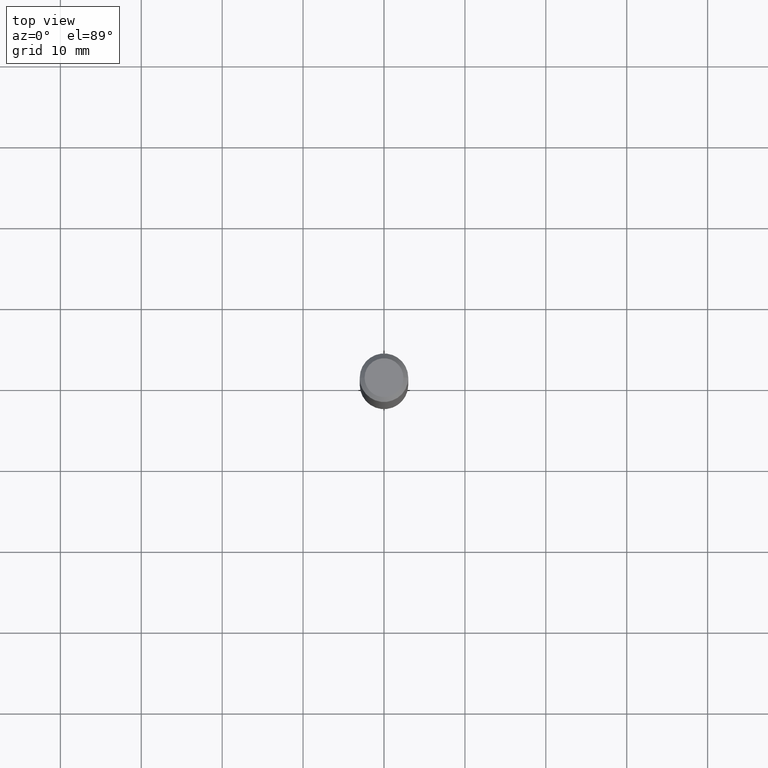
[diagram: clean part render]
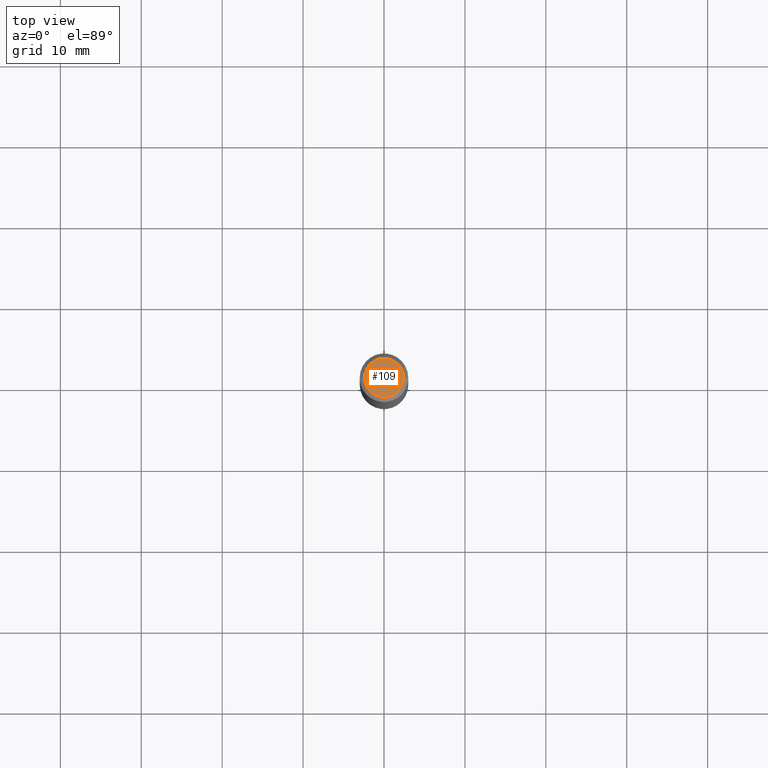
[diagram: same view with one face highlighted and labeled with its STEP entity id]
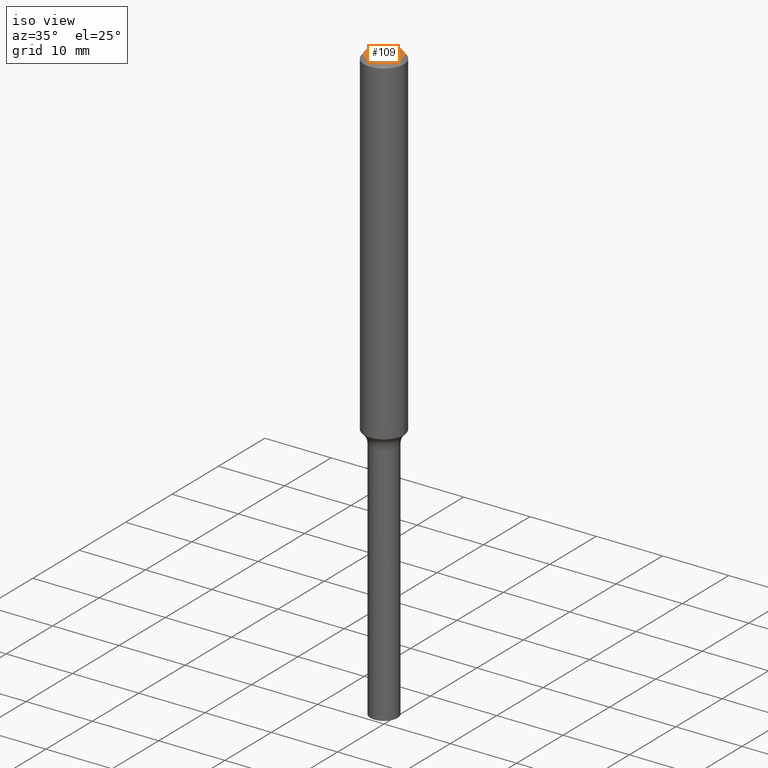
[diagram: same view with one face highlighted and labeled with its STEP entity id]
A machine part, top view. The second image highlights one B-rep face of the part: STEP entity #109.
A second angle (iso view) of the same face is appended — the face is thin or edge-on in the first view.
In plain terms, the highlighted planar face has unit normal (0, -0, -1).
Its self-contained STEP definition (entity closure, byte-faithful):
#4 = CARTESIAN_POINT ( 'NONE',  ( 3.772893820736570314E-46, -5.386692455541008845E-32, -1.542810037565835988E-17 ) ) ;
#21 = CIRCLE ( 'NONE', #228, 0.09447999999999998066 ) ;
#35 = DIRECTION ( 'NONE',  ( -2.445468806185136597E-29, 3.491481338843145583E-15, 1.000000000000000000 ) ) ;
#56 = VERTEX_POINT ( 'NONE', #119 ) ;
#109 = ADVANCED_FACE ( 'NONE', ( #235 ), #334, .F. ) ;
#119 = CARTESIAN_POINT ( 'NONE',  ( -0.09447999999999998066, 7.009847083995354710E-16, -3.085620075132147757E-17 ) ) ;
#136 = DIRECTION ( 'NONE',  ( 2.438088387897960049E-29, -3.491481338843145188E-15, -1.000000000000000000 ) ) ;
#139 = DIRECTION ( 'NONE',  ( -1.000000000000000000, 6.982962677686265922E-15, -4.876176775795935793E-29 ) ) ;
#155 = EDGE_CURVE ( 'NONE', #56, #211, #21, .T. ) ;
#208 = DIRECTION ( 'NONE',  ( 1.000000000000000000, -6.982962677686267499E-15, 4.875432709231658792E-29 ) ) ;
#211 = VERTEX_POINT ( 'NONE', #216 ) ;
#216 = CARTESIAN_POINT ( 'NONE',  ( 0.09447999999999998066, -7.704367267948738690E-16, -3.085620075131172158E-17 ) ) ;
#228 = AXIS2_PLACEMENT_3D ( 'NONE', #293, #35, #208 ) ;
#235 = FACE_OUTER_BOUND ( 'NONE', #377, .T. ) ;
#245 = AXIS2_PLACEMENT_3D ( 'NONE', #397, #288, #401 ) ;
#288 = DIRECTION ( 'NONE',  ( -2.445468806185136597E-29, 3.491481338843145583E-15, 1.000000000000000000 ) ) ;
#293 = CARTESIAN_POINT ( 'NONE',  ( 7.545787641473140628E-46, -1.077338491108201769E-31, -3.085620075131671975E-17 ) ) ;
#334 = PLANE ( 'NONE',  #384 ) ;
#342 = EDGE_CURVE ( 'NONE', #211, #56, #398, .T. ) ;
#377 = EDGE_LOOP ( 'NONE', ( #499, #504 ) ) ;
#384 = AXIS2_PLACEMENT_3D ( 'NONE', #4, #136, #139 ) ;
#397 = CARTESIAN_POINT ( 'NONE',  ( 7.545787641473140628E-46, -1.077338491108201769E-31, -3.085620075131671975E-17 ) ) ;
#398 = CIRCLE ( 'NONE', #245, 0.09447999999999998066 ) ;
#401 = DIRECTION ( 'NONE',  ( 1.000000000000000000, -6.982962677686267499E-15, 4.875432709231658792E-29 ) ) ;
#499 = ORIENTED_EDGE ( 'NONE', *, *, #155, .T. ) ;
#504 = ORIENTED_EDGE ( 'NONE', *, *, #342, .T. ) ;